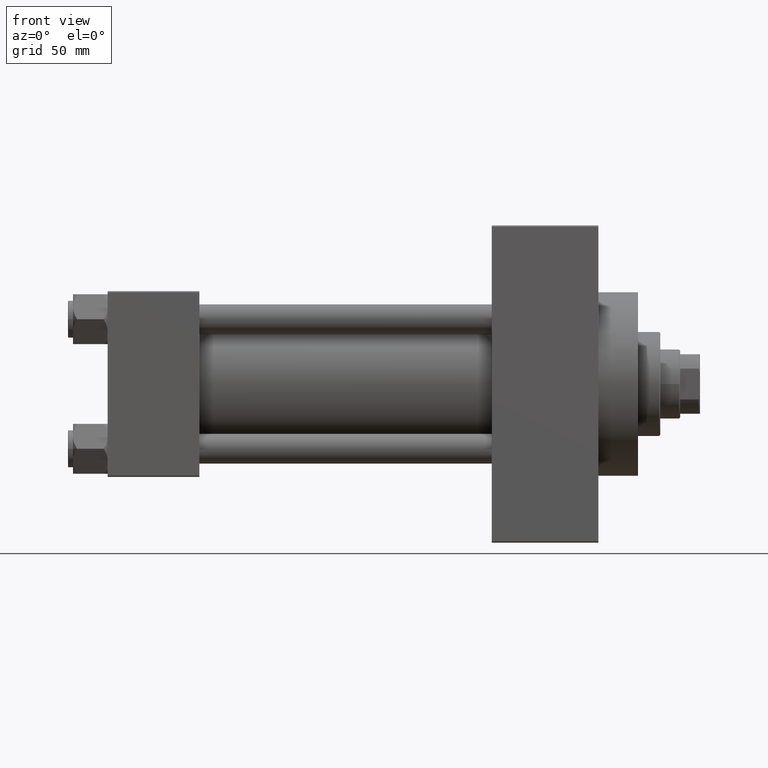
[diagram: clean part render]
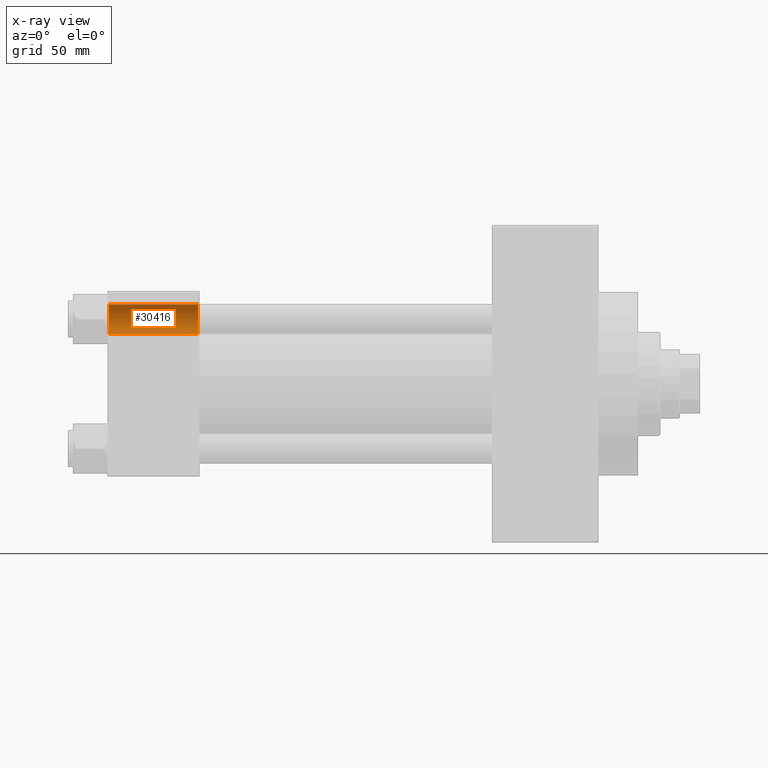
[diagram: x-ray — body ghosted, one internal face saturated and labeled with its STEP entity id]
A machine part, front view, then the same camera in x-ray: the body is ghosted and one INTERNAL B-rep face — a face not visible from any outside direction — is saturated and labeled: STEP entity #30416.
In plain terms, the highlighted cylindrical surface (edge-blend (fillet) strip) has radius 6 mm, axis along (-1, -0, -0).
Its self-contained STEP definition (entity closure, byte-faithful):
#514 = CARTESIAN_POINT ( 'NONE',  ( 37.00000000000000711, 26.14999999999999858, 20.14999999999999858 ) ) ;
#888 = FACE_OUTER_BOUND ( 'NONE', #19073, .T. ) ;
#1374 = DIRECTION ( 'NONE',  ( 0.000000000000000000, 0.000000000000000000, 1.000000000000000000 ) ) ;
#3682 = DIRECTION ( 'NONE',  ( 0.000000000000000000, 0.000000000000000000, 1.000000000000000000 ) ) ;
#4783 = CARTESIAN_POINT ( 'NONE',  ( 0.5000000000000213163, 26.14999999999999858, 20.14999999999999858 ) ) ;
#6582 = VECTOR ( 'NONE', #34367, 1000.000000000000000 ) ;
#8689 = CARTESIAN_POINT ( 'NONE',  ( 37.00000000000000711, 26.14999999999999858, 32.15000000000001279 ) ) ;
#8887 = DIRECTION ( 'NONE',  ( 0.000000000000000000, 0.000000000000000000, 1.000000000000000000 ) ) ;
#10584 = AXIS2_PLACEMENT_3D ( 'NONE', #37591, #30152, #1374 ) ;
#11681 = CYLINDRICAL_SURFACE ( 'NONE', #10584, 6.000000000000008882 ) ;
#14164 = VERTEX_POINT ( 'NONE', #39576 ) ;
#18603 = VERTEX_POINT ( 'NONE', #4783 ) ;
#18928 = AXIS2_PLACEMENT_3D ( 'NONE', #31298, #25269, #3682 ) ;
#19073 = EDGE_LOOP ( 'NONE', ( #32892, #47159, #32838, #36735 ) ) ;
#19199 = CARTESIAN_POINT ( 'NONE',  ( 0.5000000000000213163, 26.14999999999999858, 26.15000000000000213 ) ) ;
#19434 = LINE ( 'NONE', #514, #38078 ) ;
#20651 = AXIS2_PLACEMENT_3D ( 'NONE', #19199, #45109, #8887 ) ;
#24128 = EDGE_CURVE ( 'NONE', #14164, #18603, #19434, .T. ) ;
#25269 = DIRECTION ( 'NONE',  ( 1.000000000000000000, -0.000000000000000000, -0.000000000000000000 ) ) ;
#26026 = EDGE_CURVE ( 'NONE', #29239, #44514, #41565, .T. ) ;
#28904 = EDGE_CURVE ( 'NONE', #14164, #29239, #39650, .T. ) ;
#29239 = VERTEX_POINT ( 'NONE', #35965 ) ;
#30152 = DIRECTION ( 'NONE',  ( -1.000000000000000000, -0.000000000000000000, -0.000000000000000000 ) ) ;
#30416 = ADVANCED_FACE ( 'NONE', ( #888 ), #11681, .F. ) ;
#30493 = DIRECTION ( 'NONE',  ( -1.000000000000000000, -0.000000000000000000, -0.000000000000000000 ) ) ;
#31298 = CARTESIAN_POINT ( 'NONE',  ( 36.50000000000000711, 26.14999999999999858, 26.15000000000000213 ) ) ;
#32838 = ORIENTED_EDGE ( 'NONE', *, *, #26026, .T. ) ;
#32892 = ORIENTED_EDGE ( 'NONE', *, *, #24128, .F. ) ;
#34367 = DIRECTION ( 'NONE',  ( -1.000000000000000000, -0.000000000000000000, -0.000000000000000000 ) ) ;
#34668 = EDGE_CURVE ( 'NONE', #44514, #18603, #35972, .T. ) ;
#35965 = CARTESIAN_POINT ( 'NONE',  ( 36.50000000000000711, 26.14999999999999858, 32.15000000000001279 ) ) ;
#35972 = CIRCLE ( 'NONE', #20651, 6.000000000000008882 ) ;
#36735 = ORIENTED_EDGE ( 'NONE', *, *, #34668, .T. ) ;
#37591 = CARTESIAN_POINT ( 'NONE',  ( 37.00000000000000711, 26.14999999999999858, 26.15000000000000213 ) ) ;
#38078 = VECTOR ( 'NONE', #30493, 1000.000000000000000 ) ;
#39576 = CARTESIAN_POINT ( 'NONE',  ( 36.50000000000000711, 26.14999999999999858, 20.14999999999999858 ) ) ;
#39650 = CIRCLE ( 'NONE', #18928, 6.000000000000008882 ) ;
#41565 = LINE ( 'NONE', #8689, #6582 ) ;
#44514 = VERTEX_POINT ( 'NONE', #45777 ) ;
#45109 = DIRECTION ( 'NONE',  ( -1.000000000000000000, 0.000000000000000000, 0.000000000000000000 ) ) ;
#45777 = CARTESIAN_POINT ( 'NONE',  ( 0.5000000000000213163, 26.14999999999999858, 32.15000000000001279 ) ) ;
#47159 = ORIENTED_EDGE ( 'NONE', *, *, #28904, .T. ) ;